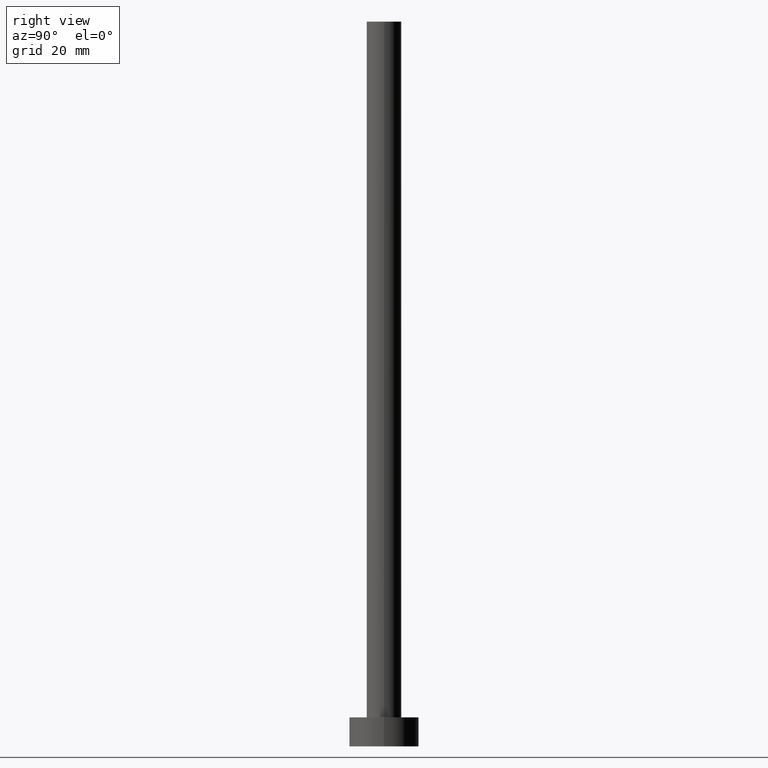
[diagram: clean part render]
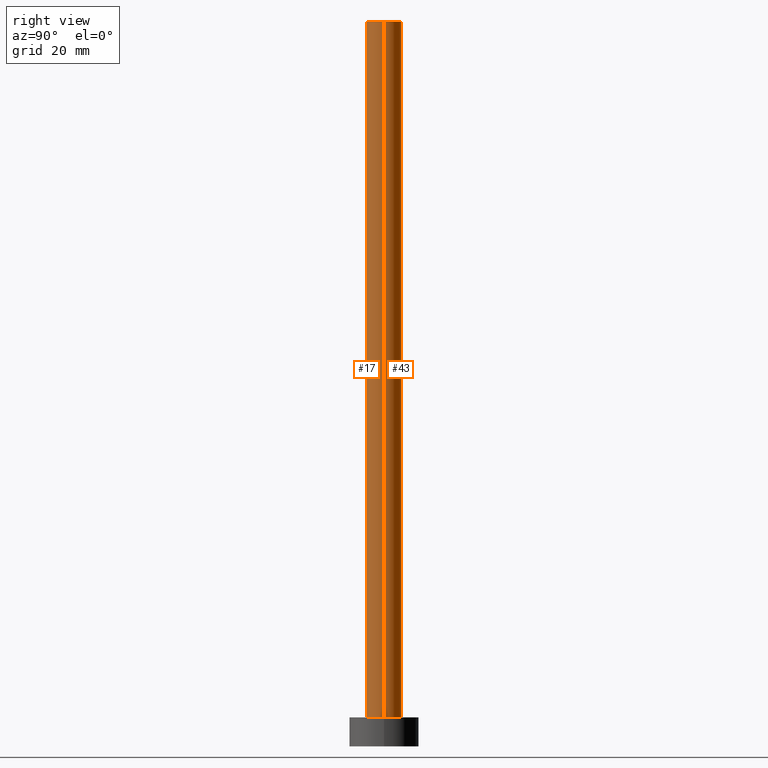
[diagram: same view with one multi-face feature highlighted, each face labeled with its STEP entity id]
A machine part, right view. The highlighted faces form ONE feature: a constant-radius fillet chain: 2 tangent blend faces with common blend radius 3 mm. The faces share edges in the B-rep.
Their STEP definitions:
[1] entity #43 (Cylinder):
#1 = EDGE_CURVE ( 'NONE', #182, #237, #229, .T. ) ;
#4 = ORIENTED_EDGE ( 'NONE', *, *, #82, .T. ) ;
#6 = CARTESIAN_POINT ( 'NONE',  ( 0.000000000000000000, 0.000000000000000000, 5.000000000000000000 ) ) ;
#11 = CARTESIAN_POINT ( 'NONE',  ( 3.000000000000000444, 3.673940397442060361E-16, 5.000000000000000000 ) ) ;
#13 = CARTESIAN_POINT ( 'NONE',  ( 3.000000000000000444, 3.673940397442060361E-16, 125.0000000000000000 ) ) ;
#14 = VECTOR ( 'NONE', #80, 1000.000000000000000 ) ;
#36 = LINE ( 'NONE', #104, #112 ) ;
#38 = DIRECTION ( 'NONE',  ( -1.000000000000000000, 0.000000000000000000, 0.000000000000000000 ) ) ;
#41 = EDGE_CURVE ( 'NONE', #237, #49, #36, .T. ) ;
#43 = ADVANCED_FACE ( 'NONE', ( #81 ), #219, .T. ) ;
#46 = EDGE_LOOP ( 'NONE', ( #113, #4, #97, #150 ) ) ;
#49 = VERTEX_POINT ( 'NONE', #106 ) ;
#52 = VERTEX_POINT ( 'NONE', #11 ) ;
#63 = DIRECTION ( 'NONE',  ( 1.000000000000000000, 0.000000000000000000, 0.000000000000000000 ) ) ;
#74 = CARTESIAN_POINT ( 'NONE',  ( 0.000000000000000000, 0.000000000000000000, 125.0000000000000000 ) ) ;
#80 = DIRECTION ( 'NONE',  ( -0.000000000000000000, -0.000000000000000000, -1.000000000000000000 ) ) ;
#81 = FACE_OUTER_BOUND ( 'NONE', #46, .T. ) ;
#82 = EDGE_CURVE ( 'NONE', #182, #52, #243, .T. ) ;
#97 = ORIENTED_EDGE ( 'NONE', *, *, #128, .T. ) ;
#104 = CARTESIAN_POINT ( 'NONE',  ( -3.000000000000000444, 0.000000000000000000, 125.0000000000000000 ) ) ;
#106 = CARTESIAN_POINT ( 'NONE',  ( -3.000000000000000444, 0.000000000000000000, 5.000000000000000000 ) ) ;
#112 = VECTOR ( 'NONE', #141, 1000.000000000000000 ) ;
#113 = ORIENTED_EDGE ( 'NONE', *, *, #1, .F. ) ;
#120 = CIRCLE ( 'NONE', #224, 3.000000000000000444 ) ;
#128 = EDGE_CURVE ( 'NONE', #52, #49, #120, .T. ) ;
#132 = DIRECTION ( 'NONE',  ( 0.000000000000000000, 0.000000000000000000, 1.000000000000000000 ) ) ;
#139 = AXIS2_PLACEMENT_3D ( 'NONE', #74, #132, #165 ) ;
#141 = DIRECTION ( 'NONE',  ( -0.000000000000000000, -0.000000000000000000, -1.000000000000000000 ) ) ;
#150 = ORIENTED_EDGE ( 'NONE', *, *, #41, .F. ) ;
#159 = AXIS2_PLACEMENT_3D ( 'NONE', #186, #184, #38 ) ;
#165 = DIRECTION ( 'NONE',  ( 1.000000000000000000, 0.000000000000000000, 0.000000000000000000 ) ) ;
#175 = DIRECTION ( 'NONE',  ( 0.000000000000000000, 0.000000000000000000, 1.000000000000000000 ) ) ;
#182 = VERTEX_POINT ( 'NONE', #13 ) ;
#184 = DIRECTION ( 'NONE',  ( -0.000000000000000000, -0.000000000000000000, -1.000000000000000000 ) ) ;
#186 = CARTESIAN_POINT ( 'NONE',  ( 0.000000000000000000, 0.000000000000000000, 125.0000000000000000 ) ) ;
#200 = CARTESIAN_POINT ( 'NONE',  ( 3.000000000000000444, 3.673940397442060361E-16, 125.0000000000000000 ) ) ;
#219 = CYLINDRICAL_SURFACE ( 'NONE', #159, 3.000000000000000444 ) ;
#224 = AXIS2_PLACEMENT_3D ( 'NONE', #6, #175, #63 ) ;
#229 = CIRCLE ( 'NONE', #139, 3.000000000000000444 ) ;
#237 = VERTEX_POINT ( 'NONE', #250 ) ;
#243 = LINE ( 'NONE', #200, #14 ) ;
#250 = CARTESIAN_POINT ( 'NONE',  ( -3.000000000000000444, 0.000000000000000000, 125.0000000000000000 ) ) ;
[2] entity #17 (Cylinder):
#11 = CARTESIAN_POINT ( 'NONE',  ( 3.000000000000000444, 3.673940397442060361E-16, 5.000000000000000000 ) ) ;
#13 = CARTESIAN_POINT ( 'NONE',  ( 3.000000000000000444, 3.673940397442060361E-16, 125.0000000000000000 ) ) ;
#14 = VECTOR ( 'NONE', #80, 1000.000000000000000 ) ;
#17 = ADVANCED_FACE ( 'NONE', ( #71 ), #151, .T. ) ;
#36 = LINE ( 'NONE', #104, #112 ) ;
#41 = EDGE_CURVE ( 'NONE', #237, #49, #36, .T. ) ;
#42 = CARTESIAN_POINT ( 'NONE',  ( 0.000000000000000000, 0.000000000000000000, 125.0000000000000000 ) ) ;
#48 = CIRCLE ( 'NONE', #201, 3.000000000000000444 ) ;
#49 = VERTEX_POINT ( 'NONE', #106 ) ;
#51 = CARTESIAN_POINT ( 'NONE',  ( 0.000000000000000000, 0.000000000000000000, 125.0000000000000000 ) ) ;
#52 = VERTEX_POINT ( 'NONE', #11 ) ;
#67 = EDGE_LOOP ( 'NONE', ( #199, #100, #167, #99 ) ) ;
#71 = FACE_OUTER_BOUND ( 'NONE', #67, .T. ) ;
#80 = DIRECTION ( 'NONE',  ( -0.000000000000000000, -0.000000000000000000, -1.000000000000000000 ) ) ;
#82 = EDGE_CURVE ( 'NONE', #182, #52, #243, .T. ) ;
#99 = ORIENTED_EDGE ( 'NONE', *, *, #146, .T. ) ;
#100 = ORIENTED_EDGE ( 'NONE', *, *, #249, .F. ) ;
#104 = CARTESIAN_POINT ( 'NONE',  ( -3.000000000000000444, 0.000000000000000000, 125.0000000000000000 ) ) ;
#106 = CARTESIAN_POINT ( 'NONE',  ( -3.000000000000000444, 0.000000000000000000, 5.000000000000000000 ) ) ;
#112 = VECTOR ( 'NONE', #141, 1000.000000000000000 ) ;
#116 = DIRECTION ( 'NONE',  ( -1.000000000000000000, 0.000000000000000000, 0.000000000000000000 ) ) ;
#123 = AXIS2_PLACEMENT_3D ( 'NONE', #51, #196, #116 ) ;
#141 = DIRECTION ( 'NONE',  ( -0.000000000000000000, -0.000000000000000000, -1.000000000000000000 ) ) ;
#144 = DIRECTION ( 'NONE',  ( 1.000000000000000000, 0.000000000000000000, 0.000000000000000000 ) ) ;
#146 = EDGE_CURVE ( 'NONE', #49, #52, #48, .T. ) ;
#151 = CYLINDRICAL_SURFACE ( 'NONE', #123, 3.000000000000000444 ) ;
#158 = DIRECTION ( 'NONE',  ( 0.000000000000000000, 0.000000000000000000, 1.000000000000000000 ) ) ;
#167 = ORIENTED_EDGE ( 'NONE', *, *, #41, .T. ) ;
#174 = DIRECTION ( 'NONE',  ( 1.000000000000000000, 0.000000000000000000, 0.000000000000000000 ) ) ;
#182 = VERTEX_POINT ( 'NONE', #13 ) ;
#189 = CARTESIAN_POINT ( 'NONE',  ( 0.000000000000000000, 0.000000000000000000, 5.000000000000000000 ) ) ;
#191 = DIRECTION ( 'NONE',  ( 0.000000000000000000, 0.000000000000000000, 1.000000000000000000 ) ) ;
#196 = DIRECTION ( 'NONE',  ( -0.000000000000000000, -0.000000000000000000, -1.000000000000000000 ) ) ;
#199 = ORIENTED_EDGE ( 'NONE', *, *, #82, .F. ) ;
#200 = CARTESIAN_POINT ( 'NONE',  ( 3.000000000000000444, 3.673940397442060361E-16, 125.0000000000000000 ) ) ;
#201 = AXIS2_PLACEMENT_3D ( 'NONE', #189, #158, #174 ) ;
#212 = CIRCLE ( 'NONE', #238, 3.000000000000000444 ) ;
#237 = VERTEX_POINT ( 'NONE', #250 ) ;
#238 = AXIS2_PLACEMENT_3D ( 'NONE', #42, #191, #144 ) ;
#243 = LINE ( 'NONE', #200, #14 ) ;
#249 = EDGE_CURVE ( 'NONE', #237, #182, #212, .T. ) ;
#250 = CARTESIAN_POINT ( 'NONE',  ( -3.000000000000000444, 0.000000000000000000, 125.0000000000000000 ) ) ;